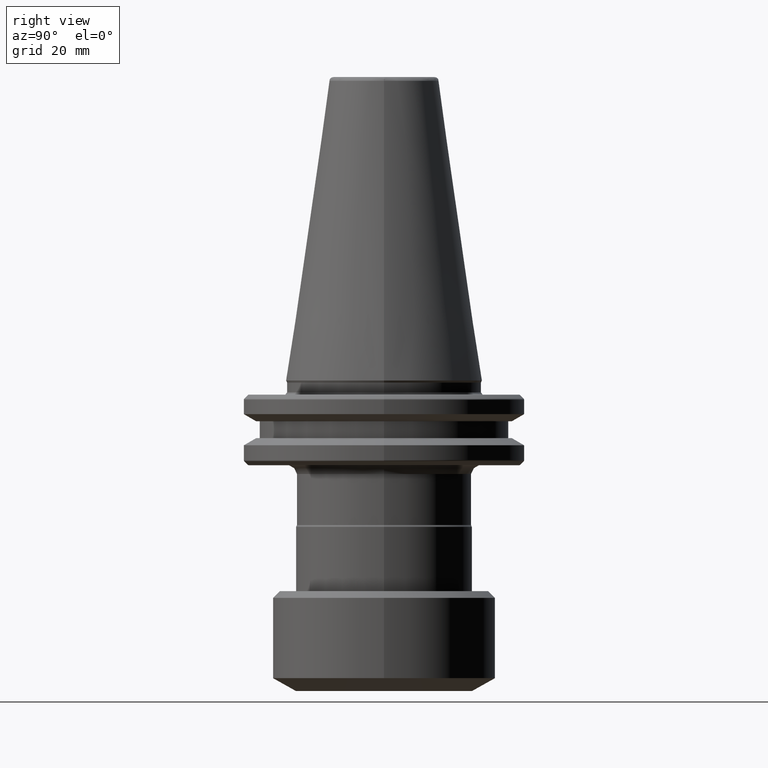
[diagram: clean part render]
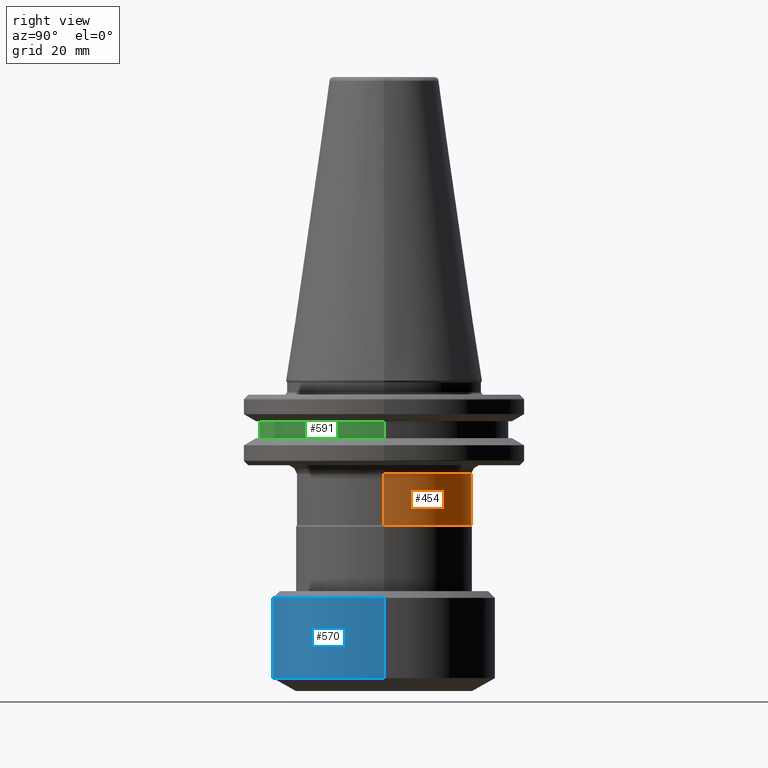
[diagram: same view with three faces highlighted in distinct colors, each labeled with its STEP entity id]
A machine part, right view with three faces highlighted in distinct colors.
Their STEP definitions:

[orange] entity #454 — the highlighted cylindrical surface (partial cylindrical patch) has radius 19.75 mm, axis along (-0, 0, 1).
#66 = CYLINDRICAL_SURFACE ( 'NONE', #478, 19.75000000000000000 ) ;
#81 = VECTOR ( 'NONE', #624, 1000.000000000000000 ) ;
#98 = FACE_OUTER_BOUND ( 'NONE', #584, .T. ) ;
#150 = EDGE_CURVE ( 'NONE', #680, #723, #325, .T. ) ;
#154 = CIRCLE ( 'NONE', #1017, 19.75000000000000000 ) ;
#169 = LINE ( 'NONE', #627, #81 ) ;
#309 = CARTESIAN_POINT ( 'NONE',  ( 0.0000000000000000000, 0.0000000000000000000, -21.10000000000000500 ) ) ;
#325 = CIRCLE ( 'NONE', #1044, 19.74999999999999300 ) ;
#376 = ORIENTED_EDGE ( 'NONE', *, *, #1125, .T. ) ;
#389 = CARTESIAN_POINT ( 'NONE',  ( -19.75000000000001800, 0.0000000000000000000, -32.57109861600005000 ) ) ;
#431 = VERTEX_POINT ( 'NONE', #389 ) ;
#454 = ADVANCED_FACE ( 'NONE', ( #98 ), #66, .T. ) ;
#456 = CARTESIAN_POINT ( 'NONE',  ( 19.74999999999999600, -2.418677428316022700E-015, -21.10000000000000100 ) ) ;
#468 = DIRECTION ( 'NONE',  ( 0.0000000000000000000, 1.000000000000000000, 0.0000000000000000000 ) ) ;
#478 = AXIS2_PLACEMENT_3D ( 'NONE', #1037, #1066, #1206 ) ;
#486 = CARTESIAN_POINT ( 'NONE',  ( 19.75000000000001800, 2.418677428316024700E-015, -32.57109861600005000 ) ) ;
#564 = ORIENTED_EDGE ( 'NONE', *, *, #1439, .T. ) ;
#584 = EDGE_LOOP ( 'NONE', ( #376, #564, #826, #1160 ) ) ;
#612 = DIRECTION ( 'NONE',  ( -1.756682000989171700E-016, 0.0000000000000000000, 1.000000000000000000 ) ) ;
#624 = DIRECTION ( 'NONE',  ( -1.756682000989171700E-016, 0.0000000000000000000, 1.000000000000000000 ) ) ;
#627 = CARTESIAN_POINT ( 'NONE',  ( -19.75000000000000000, 2.418677428316022700E-015, -32.57109861600000800 ) ) ;
#643 = CARTESIAN_POINT ( 'NONE',  ( 19.75000000000000000, 0.0000000000000000000, -32.57109861599999300 ) ) ;
#648 = CARTESIAN_POINT ( 'NONE',  ( -19.74999999999999600, 9.070040356185085700E-016, -21.10000000000000500 ) ) ;
#656 = VERTEX_POINT ( 'NONE', #486 ) ;
#671 = EDGE_CURVE ( 'NONE', #656, #723, #1203, .T. ) ;
#680 = VERTEX_POINT ( 'NONE', #648 ) ;
#723 = VERTEX_POINT ( 'NONE', #456 ) ;
#826 = ORIENTED_EDGE ( 'NONE', *, *, #150, .T. ) ;
#1017 = AXIS2_PLACEMENT_3D ( 'NONE', #1579, #1572, #1566 ) ;
#1037 = CARTESIAN_POINT ( 'NONE',  ( 0.0000000000000000000, 0.0000000000000000000, -32.57109861600000000 ) ) ;
#1044 = AXIS2_PLACEMENT_3D ( 'NONE', #309, #1087, #468 ) ;
#1066 = DIRECTION ( 'NONE',  ( -1.756682000989171700E-016, 0.0000000000000000000, 1.000000000000000000 ) ) ;
#1087 = DIRECTION ( 'NONE',  ( 0.0000000000000000000, 8.783410004945858700E-017, -1.000000000000000000 ) ) ;
#1125 = EDGE_CURVE ( 'NONE', #656, #431, #154, .T. ) ;
#1157 = VECTOR ( 'NONE', #612, 1000.000000000000000 ) ;
#1160 = ORIENTED_EDGE ( 'NONE', *, *, #671, .F. ) ;
#1203 = LINE ( 'NONE', #643, #1157 ) ;
#1206 = DIRECTION ( 'NONE',  ( 1.000000000000000000, 0.0000000000000000000, 3.513364001978343500E-016 ) ) ;
#1439 = EDGE_CURVE ( 'NONE', #431, #680, #169, .T. ) ;
#1566 = DIRECTION ( 'NONE',  ( 1.000000000000000000, 0.0000000000000000000, 0.0000000000000000000 ) ) ;
#1572 = DIRECTION ( 'NONE',  ( -1.756682000989171700E-016, 0.0000000000000000000, 1.000000000000000000 ) ) ;
#1579 = CARTESIAN_POINT ( 'NONE',  ( 9.142072520825486500E-030, 0.0000000000000000000, -32.57109861600005000 ) ) ;

[blue] entity #570 — the highlighted cylindrical surface (partial cylindrical patch) has radius 25 mm, axis along (0, 0, 1).
#10 = FACE_OUTER_BOUND ( 'NONE', #502, .T. ) ;
#14 = AXIS2_PLACEMENT_3D ( 'NONE', #1437, #1431, #1428 ) ;
#30 = ORIENTED_EDGE ( 'NONE', *, *, #983, .T. ) ;
#43 = CARTESIAN_POINT ( 'NONE',  ( 25.00000000000000000, 0.0000000000000000000, -67.11324865400000300 ) ) ;
#59 = EDGE_CURVE ( 'NONE', #809, #892, #417, .T. ) ;
#215 = CIRCLE ( 'NONE', #14, 25.00000000000002100 ) ;
#233 = AXIS2_PLACEMENT_3D ( 'NONE', #851, #817, #776 ) ;
#273 = EDGE_CURVE ( 'NONE', #1265, #988, #215, .T. ) ;
#417 = CIRCLE ( 'NONE', #233, 25.00000000000000000 ) ;
#423 = LINE ( 'NONE', #1244, #463 ) ;
#463 = VECTOR ( 'NONE', #1370, 1000.000000000000000 ) ;
#489 = CIRCLE ( 'NONE', #1140, 25.00000000000002100 ) ;
#502 = EDGE_LOOP ( 'NONE', ( #1009, #1424, #30, #700, #707 ) ) ;
#570 = ADVANCED_FACE ( 'NONE', ( #10 ), #1458, .T. ) ;
#636 = DIRECTION ( 'NONE',  ( 0.0000000000000000000, 0.0000000000000000000, 1.000000000000000000 ) ) ;
#644 = CARTESIAN_POINT ( 'NONE',  ( -25.00000000000000000, 3.061616997868383000E-015, -67.11324865400000300 ) ) ;
#663 = EDGE_CURVE ( 'NONE', #809, #1265, #1378, .T. ) ;
#700 = ORIENTED_EDGE ( 'NONE', *, *, #1314, .F. ) ;
#707 = ORIENTED_EDGE ( 'NONE', *, *, #273, .F. ) ;
#776 = DIRECTION ( 'NONE',  ( 1.000000000000000000, 0.0000000000000000000, 0.0000000000000000000 ) ) ;
#809 = VERTEX_POINT ( 'NONE', #1071 ) ;
#817 = DIRECTION ( 'NONE',  ( 0.0000000000000000000, 0.0000000000000000000, 1.000000000000000000 ) ) ;
#851 = CARTESIAN_POINT ( 'NONE',  ( 0.0000000000000000000, 0.0000000000000000000, -67.11324865400000300 ) ) ;
#885 = CARTESIAN_POINT ( 'NONE',  ( 3.061616997868384200E-015, -25.00000000000000700, -49.00000000000001400 ) ) ;
#892 = VERTEX_POINT ( 'NONE', #43 ) ;
#896 = DIRECTION ( 'NONE',  ( 0.0000000000000000000, 0.0000000000000000000, 1.000000000000000000 ) ) ;
#900 = DIRECTION ( 'NONE',  ( 1.000000000000000000, 0.0000000000000000000, 0.0000000000000000000 ) ) ;
#911 = CARTESIAN_POINT ( 'NONE',  ( 0.0000000000000000000, 0.0000000000000000000, -67.11324865400000300 ) ) ;
#983 = EDGE_CURVE ( 'NONE', #892, #1145, #423, .T. ) ;
#988 = VERTEX_POINT ( 'NONE', #885 ) ;
#996 = DIRECTION ( 'NONE',  ( -1.000000000000000000, 0.0000000000000000000, -2.775557561562888900E-016 ) ) ;
#998 = DIRECTION ( 'NONE',  ( -1.476360405086644300E-016, -0.0000000000000000000, 1.000000000000000000 ) ) ;
#999 = CARTESIAN_POINT ( 'NONE',  ( 2.214540607629989000E-016, 0.0000000000000000000, -49.00000000000001400 ) ) ;
#1009 = ORIENTED_EDGE ( 'NONE', *, *, #663, .F. ) ;
#1060 = AXIS2_PLACEMENT_3D ( 'NONE', #911, #896, #900 ) ;
#1071 = CARTESIAN_POINT ( 'NONE',  ( -25.00000000000000000, 3.061616997868383000E-015, -67.11324865400000300 ) ) ;
#1140 = AXIS2_PLACEMENT_3D ( 'NONE', #999, #998, #996 ) ;
#1145 = VERTEX_POINT ( 'NONE', #1560 ) ;
#1194 = VECTOR ( 'NONE', #636, 1000.000000000000000 ) ;
#1220 = CARTESIAN_POINT ( 'NONE',  ( -25.00000000000002100, 3.061616997868385800E-015, -49.00000000000002100 ) ) ;
#1244 = CARTESIAN_POINT ( 'NONE',  ( 25.00000000000000000, 0.0000000000000000000, -67.11324865400000300 ) ) ;
#1265 = VERTEX_POINT ( 'NONE', #1220 ) ;
#1314 = EDGE_CURVE ( 'NONE', #988, #1145, #489, .T. ) ;
#1370 = DIRECTION ( 'NONE',  ( 0.0000000000000000000, 0.0000000000000000000, 1.000000000000000000 ) ) ;
#1378 = LINE ( 'NONE', #644, #1194 ) ;
#1424 = ORIENTED_EDGE ( 'NONE', *, *, #59, .T. ) ;
#1428 = DIRECTION ( 'NONE',  ( -1.000000000000000000, 0.0000000000000000000, -2.775557561562888900E-016 ) ) ;
#1431 = DIRECTION ( 'NONE',  ( -1.476360405086644300E-016, -0.0000000000000000000, 1.000000000000000000 ) ) ;
#1437 = CARTESIAN_POINT ( 'NONE',  ( 2.214540607629989000E-016, 0.0000000000000000000, -49.00000000000001400 ) ) ;
#1458 = CYLINDRICAL_SURFACE ( 'NONE', #1060, 25.00000000000000000 ) ;
#1560 = CARTESIAN_POINT ( 'NONE',  ( 25.00000000000002100, 0.0000000000000000000, -49.00000000000000700 ) ) ;

[green] entity #591 — the highlighted cylindrical surface (partial cylindrical patch) has radius 28.02 mm, axis along (-0, -0, 1).
#111 = EDGE_CURVE ( 'NONE', #1366, #1403, #433, .T. ) ;
#151 = CARTESIAN_POINT ( 'NONE',  ( -28.01999999501669300, 3.431460330600605100E-015, -12.99000000389934200 ) ) ;
#191 = CIRCLE ( 'NONE', #937, 28.01999999501669300 ) ;
#323 = EDGE_CURVE ( 'NONE', #1133, #1366, #191, .T. ) ;
#377 = VECTOR ( 'NONE', #568, 1000.000000000000000 ) ;
#432 = DIRECTION ( 'NONE',  ( 1.000000000000000000, 0.0000000000000000000, 0.0000000000000000000 ) ) ;
#433 = LINE ( 'NONE', #589, #377 ) ;
#438 = DIRECTION ( 'NONE',  ( -0.0000000000000000000, -0.0000000000000000000, 1.000000000000000000 ) ) ;
#443 = CARTESIAN_POINT ( 'NONE',  ( 0.0000000000000000000, 0.0000000000000000000, -9.209999999925853900 ) ) ;
#521 = ORIENTED_EDGE ( 'NONE', *, *, #111, .T. ) ;
#568 = DIRECTION ( 'NONE',  ( -0.0000000000000000000, -0.0000000000000000000, 1.000000000000000000 ) ) ;
#589 = CARTESIAN_POINT ( 'NONE',  ( 28.01999999501669300, 0.0000000000000000000, 29.51504693546784400 ) ) ;
#590 = DIRECTION ( 'NONE',  ( -0.0000000000000000000, -0.0000000000000000000, 1.000000000000000000 ) ) ;
#591 = ADVANCED_FACE ( 'NONE', ( #1380 ), #1338, .T. ) ;
#599 = CARTESIAN_POINT ( 'NONE',  ( -28.01999999501669300, 3.431460330600605100E-015, 29.51504693546784400 ) ) ;
#716 = CARTESIAN_POINT ( 'NONE',  ( -28.01999999501669300, 3.431460330600605100E-015, -9.209999999925853900 ) ) ;
#805 = DIRECTION ( 'NONE',  ( -0.0000000000000000000, -0.0000000000000000000, 1.000000000000000000 ) ) ;
#818 = DIRECTION ( 'NONE',  ( 1.000000000000000000, 0.0000000000000000000, 0.0000000000000000000 ) ) ;
#869 = CARTESIAN_POINT ( 'NONE',  ( 28.01999999501669300, 0.0000000000000000000, -9.209999999925853900 ) ) ;
#907 = CARTESIAN_POINT ( 'NONE',  ( 0.0000000000000000000, 0.0000000000000000000, 29.51504693546784400 ) ) ;
#920 = CARTESIAN_POINT ( 'NONE',  ( 28.01999999501669300, 0.0000000000000000000, -12.99000000389934200 ) ) ;
#922 = VECTOR ( 'NONE', #590, 1000.000000000000000 ) ;
#937 = AXIS2_PLACEMENT_3D ( 'NONE', #1310, #1308, #1291 ) ;
#1090 = EDGE_LOOP ( 'NONE', ( #1227, #1479, #521, #1368 ) ) ;
#1133 = VERTEX_POINT ( 'NONE', #151 ) ;
#1222 = LINE ( 'NONE', #599, #922 ) ;
#1227 = ORIENTED_EDGE ( 'NONE', *, *, #1495, .F. ) ;
#1280 = AXIS2_PLACEMENT_3D ( 'NONE', #907, #805, #818 ) ;
#1291 = DIRECTION ( 'NONE',  ( 1.000000000000000000, 0.0000000000000000000, 0.0000000000000000000 ) ) ;
#1307 = AXIS2_PLACEMENT_3D ( 'NONE', #443, #438, #432 ) ;
#1308 = DIRECTION ( 'NONE',  ( -0.0000000000000000000, -0.0000000000000000000, 1.000000000000000000 ) ) ;
#1310 = CARTESIAN_POINT ( 'NONE',  ( 0.0000000000000000000, 0.0000000000000000000, -12.99000000389934200 ) ) ;
#1338 = CYLINDRICAL_SURFACE ( 'NONE', #1280, 28.01999999501669300 ) ;
#1366 = VERTEX_POINT ( 'NONE', #920 ) ;
#1368 = ORIENTED_EDGE ( 'NONE', *, *, #1535, .F. ) ;
#1380 = FACE_OUTER_BOUND ( 'NONE', #1090, .T. ) ;
#1403 = VERTEX_POINT ( 'NONE', #869 ) ;
#1420 = VERTEX_POINT ( 'NONE', #716 ) ;
#1474 = CIRCLE ( 'NONE', #1307, 28.01999999501669300 ) ;
#1479 = ORIENTED_EDGE ( 'NONE', *, *, #323, .T. ) ;
#1495 = EDGE_CURVE ( 'NONE', #1133, #1420, #1222, .T. ) ;
#1535 = EDGE_CURVE ( 'NONE', #1420, #1403, #1474, .T. ) ;